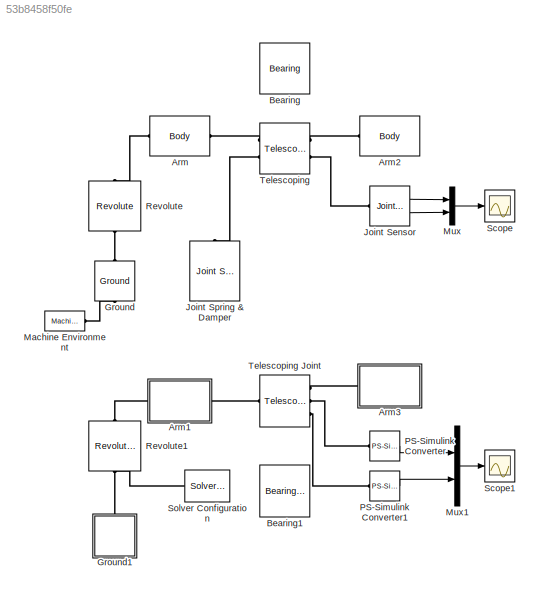
MODEL slx_53b8458f50fe
KIND model
CONFIG PreLoadFcn = Arm_length = 0.5;
BLOCK [Reference] Arm  REF=mblibv1/Bodies/Body
  AttachedToCS = CG
  BodyColor = [1 0 0]
  BodyColorSelMode = MACHINE_DEFAULT
  CG = Left$CG$[Arm_length/2 0 0]$CS1$CS1$m$[0 0 0]$Euler X-Y-Z$deg$CS1$false$none
  CGPos = [Arm_length/2 0 0]
  CGRot = [0 0 0]
  CS0Pos = []
  CS0Rot = []
  CS10Pos = []
  CS10Rot = []
  CS11Pos = []
  CS11Rot = []
  CS12Pos = []
  CS12Rot = []
  CS13Pos = []
  CS13Rot = []
  CS14Pos = []
  CS14Rot = []
  CS15Pos = []
  CS15Rot = []
  CS16Pos = []
  CS16Rot = []
  CS17Pos = []
  CS17Rot = []
  CS18Pos = []
  CS18Rot = []
  CS19Pos = []
  CS19Rot = []
  CS1Pos = [0 0 0]
  CS1Rot = [0 0 0]
  CS20Pos = []
  CS20Rot = []
  CS2Pos = [Arm_length 0 0]
  CS2Rot = [0 90 0]
  CS3Pos = []
  CS3Rot = []
  CS4Pos = []
  CS4Rot = []
  CS5Pos = []
  CS5Rot = []
  CS6Pos = []
  CS6Rot = []
  CS7Pos = []
  CS7Rot = []
  CS8Pos = []
  CS8Rot = []
  CS9Pos = []
  CS9Rot = []
  ClassName = Body
  Density = 1
  DensityUnits = kg/m^3
  DensityUse = false
  DialogClass = MechanicalBodyBlock
  GraphicsMode = MACHINE_DEFAULT
  Inertia = eye(3)
  InertiaUnits = kg*m^2
  LConnTagsString = CS1
  Mass = 1
  MassUnits = kg
  Ports = [0, 0, 0, 0, 0, 1, 1]
  RConnTagsString = CS2
  Shape = Cylinder
  ShapeDims = [1 1]
  ShapeUnits = m
  ShapeUse = false
  SourceBlock = mblibv1/Bodies/Body
  SourceType = Body
  UpdateFromCAD = off
  WorkingFrames = Left$CS1$[0 0 0]$Adjoining$Adjoining$m$[0 0 0]$Euler X-Y-Z$deg$Adjoining$true$none#Right$CS2$[Arm_length 0 0]$CS1$CS1$m$[0 90 0]$Euler X-Y-Z$deg$CS1$true$none
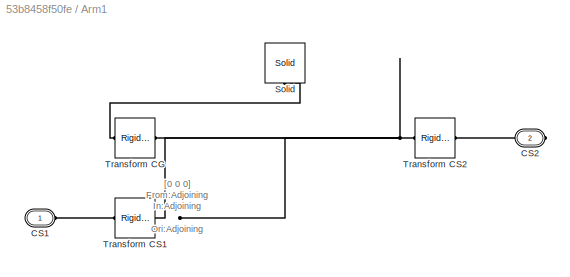
BLOCK [SubSystem] Arm1
  FunctionWithSeparateData = off
  MaskHideContents = off
  MinAlgLoopOccurrences = off
  Opaque = off
  Ports = [0, 0, 0, 0, 0, 1, 1]
  PropExecContextOutsideSubsystem = off
  RTWSystemCode = Auto
  RequestExecContextInheritance = off
BLOCK [PMIOPort] Arm1/CS1
  Port = 1
  Side = Left
BLOCK [PMIOPort] Arm1/CS2
  Port = 2
  Side = Right
BLOCK [Reference] Arm1/Solid  REF=sm_lib/Body Elements/Solid
  BlockFunction = simmechanics.library.body_elements.solid
  BrickDimensionUnits = m
  BrickDimensions = [1 0.1 0.1]*Arm_length
  CenterOfMass = [0 0 0]
  CenterOfMassUnits = m
  ClassName = Solid
  CylinderLength = 1
  CylinderLengthUnits = m
  CylinderRadius = 1
  CylinderRadiusUnits = m
  Density = 1000
  DensityBased = on
  DensityUnits = kg/(m^3)
  EllipsoidRadii = [1 1 1]
  EllipsoidRadiiUnits = m
  ExtGeomFileUnits = m
  ExtrusionCrossSection = [1 1; -1 1; -1 -1; 1 -1]
  ExtrusionCrossSectionUnits = m
  ExtrusionLength = 1
  ExtrusionLengthUnits = m
  GeometryShape = Brick
  GraphicAmbientColor = [0.15 0.15 0.15 1.0]
  GraphicDiffuseColor = [1 0 0]
  GraphicEmissiveColor = [0.0 0.0 0.0 1.0]
  GraphicOpacity = 1.0
  GraphicShininess = 75
  GraphicSpecularColor = [0.5 0.5 0.5 1.0]
  GraphicType = FromGeometry
  GraphicVisPropType = SimpleVisualProperties
  InertiaType = Custom
  MarkerShape = Sphere
  MarkerSize = 10
  MarkerSizeUnits = m
  Mass = 1
  MassUnits = kg
  MomentsOfInertia = [1  1  1]
  MomentsOfInertiaUnits = kg*m^2
  PolygonNumSides = 3
  PolygonOuterRadius = 1
  PolygonOuterRadiusUnits = m
  Ports = [0, 0, 0, 0, 0, 0, 1]
  ProductsOfInertia = [0  0  0]
  ProductsOfInertiaUnits = kg*m^2
  RectangleSize = [1 1]
  RectangleSizeUnits = m
  RevolutionAngle = 180
  RevolutionAngleUnits = deg
  RevolutionCrossSection = [1 1; 1 -1; 2 -1; 2 1]
  RevolutionCrossSectionUnits = m
  RevolutionExtent = Full
  SourceBlock = sm_lib/Body Elements/Solid
  SourceType = Solid
  SphereRadius = 1
  SphereRadiusUnits = m
BLOCK [Reference] Arm1/Transform CG  REF=sm_lib/Frames and
 Transforms/Rigid 
Transform
  BaseAlignAxisA = +Y
  BaseAlignAxisB = +Z
  BlockFunction = simmechanics.library.frames_transforms.rigid_transform
  ClassName = RigidTransform
  FollAlignAxisA = +X
  FollAlignAxisB = +Y
  Ports = [0, 0, 0, 0, 0, 1, 1]
  RotationAngle = 0.0
  RotationAngleUnits = deg
  RotationArbitraryAxis = [0 0 1]
  RotationMethod = None
  RotationStandardAxis = +Z
  SourceBlock = sm_lib/Frames and\n Transforms/Rigid \nTransform
  SourceType = Rigid Transform
  TranslationCartesianOffset = [Arm_length/2 0 0]
  TranslationLengthUnit = m
  TranslationMethod = Cartesian
  TranslationROffset = 0
  TranslationROffsetUnits = m
  TranslationStandardAxis = +Z
  TranslationStandardOffset = 0
  TranslationThetaOffset = 0
  TranslationThetaOffsetUnits = deg
  TranslationZOffset = 0
  TranslationZOffsetUnits = m
BLOCK [Reference] Arm1/Transform CS1  REF=sm_lib/Frames and
 Transforms/Rigid 
Transform
  BaseAlignAxisA = +Y
  BaseAlignAxisB = +Z
  BlockFunction = simmechanics.library.frames_transforms.rigid_transform
  ClassName = RigidTransform
  FollAlignAxisA = +X
  FollAlignAxisB = +Y
  Ports = [0, 0, 0, 0, 0, 1, 1]
  RotationAngle = 0.0
  RotationAngleUnits = deg
  RotationArbitraryAxis = [0 0 1]
  RotationMethod = None
  RotationStandardAxis = +Z
  SourceBlock = sm_lib/Frames and\n Transforms/Rigid \nTransform
  SourceType = Rigid Transform
  TranslationCartesianOffset = [0 0 0]
  TranslationLengthUnit = m
  TranslationMethod = Cartesian
  TranslationROffset = 0
  TranslationROffsetUnits = m
  TranslationStandardAxis = +Z
  TranslationStandardOffset = 0
  TranslationThetaOffset = 0
  TranslationThetaOffsetUnits = deg
  TranslationZOffset = 0
  TranslationZOffsetUnits = m
BLOCK [Reference] Arm1/Transform CS2  REF=sm_lib/Frames and
 Transforms/Rigid 
Transform
  BaseAlignAxisA = +Y
  BaseAlignAxisB = +Z
  BlockFunction = simmechanics.library.frames_transforms.rigid_transform
  ClassName = RigidTransform
  FollAlignAxisA = +X
  FollAlignAxisB = +Y
  Ports = [0, 0, 0, 0, 0, 1, 1]
  RotationAngle = 90
  RotationAngleUnits = deg
  RotationArbitraryAxis = [0 0 1]
  RotationMethod = StandardAxis
  RotationStandardAxis = +Y
  SourceBlock = sm_lib/Frames and\n Transforms/Rigid \nTransform
  SourceType = Rigid Transform
  TranslationCartesianOffset = [Arm_length 0 0]
  TranslationLengthUnit = m
  TranslationMethod = Cartesian
  TranslationROffset = 0
  TranslationROffsetUnits = m
  TranslationStandardAxis = +Z
  TranslationStandardOffset = 0
  TranslationThetaOffset = 0
  TranslationThetaOffsetUnits = deg
  TranslationZOffset = 0
  TranslationZOffsetUnits = m
BLOCK [Reference] Arm2  REF=mblibv1/Bodies/Body
  AttachedToCS = CG
  BodyColor = [1 0 0]
  BodyColorSelMode = MACHINE_DEFAULT
  CG = Right$CG$[0 0 -Arm_length/2]$CS1$CS1$m$[-90 0 0]$Euler X-Y-Z$deg$CS1$true$none
  CGPos = [0 0 -Arm_length/2]
  CGRot = [-90 0 0]
  CS0Pos = []
  CS0Rot = []
  CS10Pos = []
  CS10Rot = []
  CS11Pos = []
  CS11Rot = []
  CS12Pos = []
  CS12Rot = []
  CS13Pos = []
  CS13Rot = []
  CS14Pos = []
  CS14Rot = []
  CS15Pos = []
  CS15Rot = []
  CS16Pos = []
  CS16Rot = []
  CS17Pos = []
  CS17Rot = []
  CS18Pos = []
  CS18Rot = []
  CS19Pos = []
  CS19Rot = []
  CS1Pos = [0 0 0]
  CS1Rot = [0 0 0]
  CS20Pos = []
  CS20Rot = []
  CS2Pos = [0 0 -Arm_length]
  CS2Rot = [0 0 0]
  CS3Pos = []
  CS3Rot = []
  CS4Pos = []
  CS4Rot = []
  CS5Pos = []
  CS5Rot = []
  CS6Pos = []
  CS6Rot = []
  CS7Pos = []
  CS7Rot = []
  CS8Pos = []
  CS8Rot = []
  CS9Pos = []
  CS9Rot = []
  ClassName = Body
  Density = 1
  DensityUnits = kg/m^3
  DensityUse = false
  DialogClass = MechanicalBodyBlock
  GraphicsMode = MACHINE_DEFAULT
  Inertia = eye(3)
  InertiaUnits = kg*m^2
  LConnTagsString = CS1
  Mass = 1
  MassUnits = kg
  Ports = [0, 0, 0, 0, 0, 1, 1]
  RConnTagsString = CG
  Shape = Cylinder
  ShapeDims = [1 1]
  ShapeUnits = m
  ShapeUse = false
  SourceBlock = mblibv1/Bodies/Body
  SourceType = Body
  UpdateFromCAD = off
  WorkingFrames = Left$CS1$[0 0 0]$Adjoining$Adjoining$m$[0 0 0]$Euler X-Y-Z$deg$Adjoining$true$none#Right$CS2$[0 0 -Arm_length]$CS1$CS1$m$[0 0 0]$Euler X-Y-Z$deg$CS1$false$none
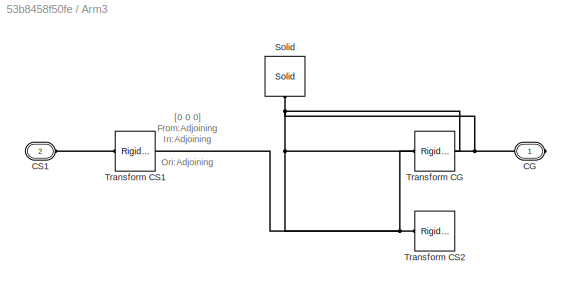
BLOCK [SubSystem] Arm3
  FunctionWithSeparateData = off
  MaskHideContents = off
  MinAlgLoopOccurrences = off
  Opaque = off
  Ports = [0, 0, 0, 0, 0, 1, 1]
  PropExecContextOutsideSubsystem = off
  RTWSystemCode = Auto
  RequestExecContextInheritance = off
BLOCK [PMIOPort] Arm3/CG
  Port = 1
  Side = Right
BLOCK [PMIOPort] Arm3/CS1
  Port = 2
  Side = Left
BLOCK [Reference] Arm3/Solid  REF=sm_lib/Body Elements/Solid
  BlockFunction = simmechanics.library.body_elements.solid
  BrickDimensionUnits = m
  BrickDimensions = [0.1 1 0.1]*Arm_length
  CenterOfMass = [0 0 0]
  CenterOfMassUnits = m
  ClassName = Solid
  CylinderLength = 1
  CylinderLengthUnits = m
  CylinderRadius = 1
  CylinderRadiusUnits = m
  Density = 1000
  DensityBased = on
  DensityUnits = kg/(m^3)
  EllipsoidRadii = [1 1 1]
  EllipsoidRadiiUnits = m
  ExtGeomFileUnits = m
  ExtrusionCrossSection = [1 1; -1 1; -1 -1; 1 -1]
  ExtrusionCrossSectionUnits = m
  ExtrusionLength = 1
  ExtrusionLengthUnits = m
  GeometryShape = Brick
  GraphicAmbientColor = [0.15 0.15 0.15 1.0]
  GraphicDiffuseColor = [1 0 0]
  GraphicEmissiveColor = [0.0 0.0 0.0 1.0]
  GraphicOpacity = 1.0
  GraphicShininess = 75
  GraphicSpecularColor = [0.5 0.5 0.5 1.0]
  GraphicType = FromGeometry
  GraphicVisPropType = SimpleVisualProperties
  InertiaType = Custom
  MarkerShape = Sphere
  MarkerSize = 10
  MarkerSizeUnits = m
  Mass = 1
  MassUnits = kg
  MomentsOfInertia = [1  1  1]
  MomentsOfInertiaUnits = kg*m^2
  PolygonNumSides = 3
  PolygonOuterRadius = 1
  PolygonOuterRadiusUnits = m
  Ports = [0, 0, 0, 0, 0, 0, 1]
  ProductsOfInertia = [0  0  0]
  ProductsOfInertiaUnits = kg*m^2
  RectangleSize = [1 1]
  RectangleSizeUnits = m
  RevolutionAngle = 180
  RevolutionAngleUnits = deg
  RevolutionCrossSection = [1 1; 1 -1; 2 -1; 2 1]
  RevolutionCrossSectionUnits = m
  RevolutionExtent = Full
  SourceBlock = sm_lib/Body Elements/Solid
  SourceType = Solid
  SphereRadius = 1
  SphereRadiusUnits = m
BLOCK [Reference] Arm3/Transform CG  REF=sm_lib/Frames and
 Transforms/Rigid 
Transform
  BaseAlignAxisA = +Y
  BaseAlignAxisB = +Z
  BlockFunction = simmechanics.library.frames_transforms.rigid_transform
  ClassName = RigidTransform
  FollAlignAxisA = +X
  FollAlignAxisB = +Y
  Ports = [0, 0, 0, 0, 0, 1, 1]
  RotationAngle = -90
  RotationAngleUnits = deg
  RotationArbitraryAxis = [0 0 1]
  RotationMethod = StandardAxis
  RotationStandardAxis = +X
  SourceBlock = sm_lib/Frames and\n Transforms/Rigid \nTransform
  SourceType = Rigid Transform
  TranslationCartesianOffset = [0 0 -Arm_length/2]
  TranslationLengthUnit = m
  TranslationMethod = Cartesian
  TranslationROffset = 0
  TranslationROffsetUnits = m
  TranslationStandardAxis = +Z
  TranslationStandardOffset = 0
  TranslationThetaOffset = 0
  TranslationThetaOffsetUnits = deg
  TranslationZOffset = 0
  TranslationZOffsetUnits = m
BLOCK [Reference] Arm3/Transform CS1  REF=sm_lib/Frames and
 Transforms/Rigid 
Transform
  BaseAlignAxisA = +Y
  BaseAlignAxisB = +Z
  BlockFunction = simmechanics.library.frames_transforms.rigid_transform
  ClassName = RigidTransform
  FollAlignAxisA = +X
  FollAlignAxisB = +Y
  Ports = [0, 0, 0, 0, 0, 1, 1]
  RotationAngle = 0.0
  RotationAngleUnits = deg
  RotationArbitraryAxis = [0 0 1]
  RotationMethod = None
  RotationStandardAxis = +Z
  SourceBlock = sm_lib/Frames and\n Transforms/Rigid \nTransform
  SourceType = Rigid Transform
  TranslationCartesianOffset = [0 0 0]
  TranslationLengthUnit = m
  TranslationMethod = Cartesian
  TranslationROffset = 0
  TranslationROffsetUnits = m
  TranslationStandardAxis = +Z
  TranslationStandardOffset = 0
  TranslationThetaOffset = 0
  TranslationThetaOffsetUnits = deg
  TranslationZOffset = 0
  TranslationZOffsetUnits = m
BLOCK [Reference] Arm3/Transform CS2  REF=sm_lib/Frames and
 Transforms/Rigid 
Transform
  BaseAlignAxisA = +Y
  BaseAlignAxisB = +Z
  BlockFunction = simmechanics.library.frames_transforms.rigid_transform
  ClassName = RigidTransform
  FollAlignAxisA = +X
  FollAlignAxisB = +Y
  Ports = [0, 0, 0, 0, 0, 1, 1]
  RotationAngle = 0.0
  RotationAngleUnits = deg
  RotationArbitraryAxis = [0 0 1]
  RotationMethod = None
  RotationStandardAxis = +Z
  SourceBlock = sm_lib/Frames and\n Transforms/Rigid \nTransform
  SourceType = Rigid Transform
  TranslationCartesianOffset = [0 0 -Arm_length]
  TranslationLengthUnit = m
  TranslationMethod = Cartesian
  TranslationROffset = 0
  TranslationROffsetUnits = m
  TranslationStandardAxis = +Z
  TranslationStandardOffset = 0
  TranslationThetaOffset = 0
  TranslationThetaOffsetUnits = deg
  TranslationZOffset = 0
  TranslationZOffsetUnits = m
BLOCK [Reference] Bearing  REF=mblibv1/Joints/Bearing
  ClassName = BearingJoint
  Commented = on
  CutJoint = off
  DialogClass = JointBlock
  LConnTagsString = __newl0|SA1
  MarkAsCut = off
  NumSAPorts = 2
  P1Axis = [0 0 1]
  Ports = [0, 0, 0, 0, 0, 2, 2]
  PrimitiveProps = R1$Follower$[1 0 0]$revolute#R2$Follower$[0 1 0]$revolute#R3$Follower$[0 0 1]$revolute#P1$Base$[0 0 1]$prismatic
  Primitives = prismatic_prismatic
  R1Axis = [1 0 0]
  R2Axis = [0 1 0]
  R3Axis = [0 0 1]
  RConnTagsString = __newr0|SA1
  SourceBlock = mblibv1/Joints/Bearing
  SourceType = Bearing
  UpdateFromCAD = off
BLOCK [Reference] Bearing1  REF=sm_lib/Joints/Bearing Joint
  BlockFunction = simmechanics.library.joints.bearing_joint
  ClassName = BearingJoint
  Commented = on
  ConstraintWrenchDir = FollowerOnBase
  ConstraintWrenchFrame = BaseFrame
  Ports = [0, 0, 0, 0, 0, 1, 3]
  PzActuationMode = NoActuation
  PzDampingCoefficient = 5
  PzDampingCoefficientUnits = N/(m/s)
  PzEquilibriumPosition = 0
  PzEquilibriumPositionUnits = m
  PzPositionTargetPriority = High
  PzPositionTargetSpecify = off
  PzPositionTargetValue = 0
  PzPositionTargetValueUnits = m
  PzSenseAcceleration = off
  PzSensePosition = on
  PzSenseTorqueForce = off
  PzSenseVelocity = on
  PzSpringStiffness = 20
  PzSpringStiffnessUnits = N/m
  PzVelocityTargetPriority = High
  PzVelocityTargetSpecify = off
  PzVelocityTargetValue = 0
  PzVelocityTargetValueUnits = m/s
  RxActuationMode = NoActuation
  RxDampingCoefficient = 0
  RxDampingCoefficientUnits = N*m/(deg/s)
  RxEquilibriumPosition = 0
  RxEquilibriumPositionUnits = deg
  RxPositionTargetPriority = High
  RxPositionTargetSpecify = off
  RxPositionTargetValue = 0
  RxPositionTargetValueUnits = deg
  RxSenseAcceleration = off
  RxSensePosition = off
  RxSenseTorqueForce = off
  RxSenseVelocity = off
  RxSpringStiffness = 0
  RxSpringStiffnessUnits = N*m/deg
  RxVelocityTargetPriority = High
  RxVelocityTargetSpecify = off
  RxVelocityTargetValue = 0
  RxVelocityTargetValueUnits = deg/s
  RyActuationMode = NoActuation
  RyDampingCoefficient = 0
  RyDampingCoefficientUnits = N*m/(deg/s)
  RyEquilibriumPosition = 0
  RyEquilibriumPositionUnits = deg
  RyPositionTargetPriority = High
  RyPositionTargetSpecify = off
  RyPositionTargetValue = 0
  RyPositionTargetValueUnits = deg
  RySenseAcceleration = off
  RySensePosition = off
  RySenseTorqueForce = off
  RySenseVelocity = off
  RySpringStiffness = 0
  RySpringStiffnessUnits = N*m/deg
  RyVelocityTargetPriority = High
  RyVelocityTargetSpecify = off
  RyVelocityTargetValue = 0
  RyVelocityTargetValueUnits = deg/s
  RzActuationMode = NoActuation
  RzDampingCoefficient = 5
  RzDampingCoefficientUnits = N*m/(deg/s)
  RzEquilibriumPosition = 0
  RzEquilibriumPositionUnits = deg
  RzPositionTargetPriority = High
  RzPositionTargetSpecify = off
  RzPositionTargetValue = 0
  RzPositionTargetValueUnits = deg
  RzSenseAcceleration = off
  RzSensePosition = off
  RzSenseTorqueForce = off
  RzSenseVelocity = off
  RzSpringStiffness = 20
  RzSpringStiffnessUnits = N*m/deg
  RzVelocityTargetPriority = High
  RzVelocityTargetSpecify = off
  RzVelocityTargetValue = 0
  RzVelocityTargetValueUnits = deg/s
  SenseConstraintForceX = off
  SenseConstraintForceY = off
  SenseConstraintForceZ = off
  SenseConstraintTorqueX = off
  SenseConstraintTorqueY = off
  SenseConstraintTorqueZ = off
  SourceBlock = sm_lib/Joints/Bearing Joint
  SourceType = Bearing Joint
BLOCK [Reference] Ground  REF=mblibv1/Bodies/Ground
  ClassName = Ground
  CoordPosition = [0 0 0]
  CoordPositionUnits = m
  DialogClass = GroundBlock
  LeftPortType = env
  MachineId = [0 0]
  PhysicalDomain = Mechanical
  Ports = [0, 0, 0, 0, 0, 1, 1]
  RightPortType = workingframe
  ShowEnvPort = on
  SourceBlock = mblibv1/Bodies/Ground
  SourceType = Ground
  StateVectorMgrId = -1
  UpdateFromCAD = off
  UserDataPersistent = on
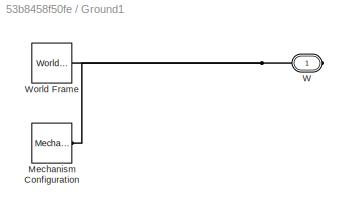
BLOCK [SubSystem] Ground1
  FunctionWithSeparateData = off
  MaskHideContents = off
  MinAlgLoopOccurrences = off
  Opaque = off
  Ports = [0, 0, 0, 0, 0, 0, 1]
  PropExecContextOutsideSubsystem = off
  RTWSystemCode = Auto
  RequestExecContextInheritance = off
BLOCK [Reference] Ground1/Mechanism Configuration  REF=sm_lib/Utilities/Mechanism
Configuration
  BlockFunction = simmechanics.library.utilities.mechanism_configuration
  ClassName = MechanismConfiguration
  GravityUnits = m/s^2
  GravityVector = [0 -9.81 0]
  LinearizationDelta = 0.001
  LogSimulationData = off
  Ports = [0, 0, 0, 0, 0, 0, 1]
  SourceBlock = sm_lib/Utilities/Mechanism\nConfiguration
  SourceType = Mechanism\nConfiguration
  UniformGravity = Constant
BLOCK [PMIOPort] Ground1/W
  Port = 1
  Side = Right
BLOCK [Reference] Ground1/World Frame  REF=sm_lib/Frames and
Transforms/World Frame
  BlockFunction = simmechanics.library.frames_transforms.world_frame
  ClassName = WorldFrame
  LogSimulationData = off
  Ports = [0, 0, 0, 0, 0, 0, 1]
  SourceBlock = sm_lib/Frames and\nTransforms/World Frame
  SourceType = World Frame
BLOCK [Reference] Joint Sensor  REF=mblibv1/Sensors & 
Actuators/Joint Sensor
  Acceleration = off
  AccelerationUnits = m/s^2
  ActiveIO = on
  Angle = on
  AngleUnits = deg
  ArcAcceleration = off
  ArcAccelerationUnits = deg/s^2
  ArcVelocity = off
  ArcVelocityUnits = deg/s
  ClassName = JointSensor
  CoordPosition = on
  CoordPositionUnits = m
  DialogClass = MechanicalSensorBlock
  Force = off
  ForceUnits = N
  Muxed = off
  OutputVector = [1]
  PhysicalDomain = Mechanical
  PortType = blob
  Ports = [0, 2, 0, 0, 0, 1]
  Pose = off
  Primitive = P1
  Quaternion = on
  QuaternionDDT = off
  QuaternionDT = off
  QuaternionUnits = off
  ReactionForce = off
  ReactionForceUnits = N
  ReactionMoment = off
  ReactionMomentUnits = N*m
  ReactionReferenceFrame = Absolute (World)
  ReactionSensedSide = Base
  ReferenceFrame = Absolute (World)
  SourceBlock = mblibv1/Sensors & \nActuators/Joint Sensor
  SourceType = Joint Sensor
  Torque = off
  TorqueUnits = N*m
  UpdateFromCAD = off
  Velocity = on
  VelocityUnits = m/s
  Width = 2
BLOCK [Reference] Joint Spring & Damper  REF=mblibv1/Force 
Elements/Joint Spring & Damper
  ClassName = JointSpringDamper
  DialogClass = JointSpringDamper
  JFEParameters = P1$true$20$5$0$m$m/s$N$deg$deg/s$N*m#P2$false$0$0$0$m$m/s$N$deg$deg/s$N*m#P3$false$0$0$0$m$m/s$N$deg$deg/s$N*m#R1$false$0$0$0$m$m/s$N$deg$deg/s$N*m#R2$false$0$0$0$m$m/s$N$deg$deg/s$N*m#R3$false$20$5$0$m$m/s$N$deg$deg/s$N*m#S$false$0$0$0$m$m/s$N$deg$deg/s$N*m
  Ports = [0, 0, 0, 0, 0, 1]
  SourceBlock = mblibv1/Force \nElements/Joint Spring & Damper
  SourceType = Joint Spring & Damper
  UpdateFromCAD = off
BLOCK [Reference] Machine Environment  REF=mblibv1/Bodies/Machine
Environment
  AnalysisType = Forward dynamics
  AngularAssemblyTolerance = 1e-3
  AngularAssemblyToleranceUnits = rad
  BodyColorSelMode = Use model default
  BodyVisualizationType = Use model default body geometries
  ClassName = Environment
  ConstraintAbsTolerance = 1e-4
  ConstraintRelTolerance = 1e-4
  ConstraintSolverType = Stabilizing
  DefaultBodyColor = [1 0 0]
  DialogTemplateClass = MECH.MachineEnvironment
  Dimensionality = Auto-detect
  Gravity = [0 -9.81 0]
  GravityAsSignal = off
  GravityUnits = m/s^2
  LinearAssemblyTolerance = 1e-3
  LinearAssemblyToleranceUnits = m
  PerturbationSize = 1e-5
  PhysicalDomain = Mechanical
  PortType = env
  Ports = [0, 0, 0, 0, 0, 0, 1]
  RedundancyAnalysisTolerance = 1e-14
  RedundancyAnalysisToleranceType = Automatically select tolerance
  SourceBlock = mblibv1/Bodies/Machine\nEnvironment
  SourceType = Machine Environment
  StatePerturbationType = Fixed
  SyncWhenCopied = off
  Tag = Factory ground
  UseRobustSingularityHandling = off
  VisualizeMachine = on
BLOCK [Mux] Mux
  DisplayOption = bar
  Inputs = 2
  Ports = [2, 1]
BLOCK [Mux] Mux1
  DisplayOption = bar
  Inputs = 2
  Ports = [2, 1]
BLOCK [Reference] PS-Simulink Converter  REF=nesl_utility/PS-Simulink
Converter
  AffineConversion = off
  Frequencies = []
  LeftPortType = input
  PhysicalDomain = network_engine_domain
  Ports = [0, 1, 0, 0, 0, 1]
  PseudoPeriodic = off
  RightPortType = output
  SourceBlock = nesl_utility/PS-Simulink\nConverter
  SourceType = PS-Simulink\nConverter
  SubClassName = ps_output
  Unit = 1
BLOCK [Reference] PS-Simulink Converter1  REF=nesl_utility/PS-Simulink
Converter
  AffineConversion = off
  Frequencies = []
  LeftPortType = input
  PhysicalDomain = network_engine_domain
  Ports = [0, 1, 0, 0, 0, 1]
  PseudoPeriodic = off
  RightPortType = output
  SourceBlock = nesl_utility/PS-Simulink\nConverter
  SourceType = PS-Simulink\nConverter
  SubClassName = ps_output
  Unit = 1
BLOCK [Reference] Revolute  REF=mblibv1/Joints/Revolute
  ClassName = Joint
  CutJoint = off
  DialogClass = JointBlock
  LConnTagsString = __newl0
  MarkAsCut = off
  NumSAPorts = 0
  Ports = [0, 0, 0, 0, 0, 1, 1]
  PrimitiveProps = R1$Base$[0 0 1]$revolute
  Primitives = prismatic
  R1Axis = [0 0 1]
  RConnTagsString = __newr0
  SourceBlock = mblibv1/Joints/Revolute
  SourceType = Revolute
  UpdateFromCAD = off
BLOCK [Reference] Revolute1  REF=sm_lib/Joints/Revolute Joint
  ActuationMode = NoActuation
  BlockFunction = simmechanics.library.joints.revolute_joint
  ClassName = RevoluteJoint
  ConstraintWrenchDir = FollowerOnBase
  ConstraintWrenchFrame = BaseFrame
  DampingCoefficient = 0
  DampingCoefficientUnits = N*m/(deg/s)
  EquilibriumPosition = 0
  EquilibriumPositionUnits = deg
  Ports = [0, 0, 0, 0, 0, 1, 1]
  PositionTargetPriority = High
  PositionTargetSpecify = off
  PositionTargetValue = 0
  PositionTargetValueUnits = deg
  SenseAcceleration = off
  SenseConstraintForceX = off
  SenseConstraintForceY = off
  SenseConstraintForceZ = off
  SenseConstraintTorqueX = off
  SenseConstraintTorqueY = off
  SenseConstraintTorqueZ = off
  SensePosition = off
  SenseTorqueForce = off
  SenseVelocity = off
  SourceBlock = sm_lib/Joints/Revolute Joint
  SourceType = Revolute Joint
  SpringStiffness = 0
  SpringStiffnessUnits = N*m/deg
  VelocityTargetPriority = High
  VelocityTargetSpecify = off
  VelocityTargetValue = 0
  VelocityTargetValueUnits = deg/s
BLOCK [Scope] Scope
  Floating = off
  NumInputPorts = 1
  Ports = [1]
  ShowLegends = off
BLOCK [Scope] Scope1
  Floating = off
  NumInputPorts = 1
  Ports = [1]
  SaveName = ScopeData1
  ShowLegends = off
BLOCK [Reference] Solver Configuration  REF=nesl_utility/Solver
Configuration
  Accelerate = off
  DelaysMemoryBudget = 1024
  DoDC = off
  DoFixedCost = off
  EnableSwitchedLinearOptims = on
  FrequencyDomain = off
  Harmonics = []
  LeftPortType = input
  LinearAlgebra = Sparse
  LocalSolverChoice = NE_BACKWARD_EULER_ADVANCER
  LocalSolverSampleTime = 0.001
  MaxModeIter = 2
  MaxNonlinIter = 3
  PhysicalDomain = network_engine_domain
  Ports = [0, 0, 0, 0, 0, 0, 1]
  Profile = off
  ResidualTolerance = 1e-09
  RightPortType = generic
  SimulateNoise = off
  SourceBlock = nesl_utility/Solver\nConfiguration
  SourceType = Solver\nConfiguration
  SubClassName = solver
  Tones = []
  UseCCode = off
  UseLocalSampling = off
  UseLocalSolver = off
  UseNewInitialization = off
BLOCK [Reference] Telescoping  REF=mblibv1/Joints/Telescoping
  ClassName = Joint
  CutJoint = off
  DialogClass = JointBlock
  LConnTagsString = __newl0|SA1
  MarkAsCut = off
  NumSAPorts = 2
  P1Axis = [0 0 1]
  Ports = [0, 0, 0, 0, 0, 2, 2]
  PrimitiveProps = S$World$[0 0 0]$spherical#P1$Base$[0 0 1]$prismatic
  Primitives = spherical
  RConnTagsString = __newr0|SA1
  SAxis = [0 0 0]
  SourceBlock = mblibv1/Joints/Telescoping
  SourceType = Telescoping
  UpdateFromCAD = off
BLOCK [Reference] Telescoping Joint  REF=sm_lib/Joints/Telescoping 
Joint
  BlockFunction = simmechanics.library.joints.telescoping_joint
  ClassName = TelescopingJoint
  ConstraintWrenchDir = FollowerOnBase
  ConstraintWrenchFrame = BaseFrame
  Ports = [0, 0, 0, 0, 0, 1, 3]
  PzActuationMode = NoActuation
  PzDampingCoefficient = 5
  PzDampingCoefficientUnits = N/(m/s)
  PzEquilibriumPosition = 0
  PzEquilibriumPositionUnits = m
  PzPositionTargetPriority = High
  PzPositionTargetSpecify = off
  PzPositionTargetValue = 0
  PzPositionTargetValueUnits = m
  PzSenseAcceleration = off
  PzSensePosition = on
  PzSenseTorqueForce = off
  PzSenseVelocity = on
  PzSpringStiffness = 20
  PzSpringStiffnessUnits = N/m
  PzVelocityTargetPriority = High
  PzVelocityTargetSpecify = off
  PzVelocityTargetValue = 0
  PzVelocityTargetValueUnits = m/s
  SenseConstraintForceX = off
  SenseConstraintForceY = off
  SenseConstraintForceZ = off
  SenseConstraintTorqueX = off
  SenseConstraintTorqueY = off
  SenseConstraintTorqueZ = off
  SourceBlock = sm_lib/Joints/Telescoping \nJoint
  SourceType = Telescoping Joint
  SphActuateTorque = off
  SphActuateTorqueX = off
  SphActuateTorqueY = off
  SphActuateTorqueZ = off
  SphActuationFrame = BaseFrame
  SphActuationMode = NoActuation
  SphDampingCoefficient = 0
  SphDampingCoefficientUnits = N*m/(deg/s)
  SphDefPosBaseAlignAxisA = +Y
  SphDefPosBaseAlignAxisB = +Z
  SphDefPosFollAlignAxisA = +X
  SphDefPosFollAlignAxisB = +Y
  SphDefPosRotationAngle = 0.0
  SphDefPosRotationAngleUnits = deg
  SphDefPosRotationArbitraryAxis = [0 0 1]
  SphDefPosRotationMethod = None
  SphDefPosRotationStandardAxis = +Z
  SphEqPosBaseAlignAxisA = +Y
  SphEqPosBaseAlignAxisB = +Z
  SphEqPosFollAlignAxisA = +X
  SphEqPosFollAlignAxisB = +Y
  SphEqPosRotationAngle = 0.0
  SphEqPosRotationAngleUnits = deg
  SphEqPosRotationArbitraryAxis = [0 0 1]
  SphEqPosRotationMethod = None
  SphEqPosRotationStandardAxis = +Z
  SphPositionTargetBaseAlignAxisA = +Y
  SphPositionTargetBaseAlignAxisB = +Z
  SphPositionTargetFollAlignAxisA = +X
  SphPositionTargetFollAlignAxisB = +Y
  SphPositionTargetPriority = High
  SphPositionTargetRotationAngle = 0.0
  SphPositionTargetRotationAngleUnits = deg
  SphPositionTargetRotationArbitraryAxis = [0 0 1]
  SphPositionTargetRotationMethod = None
  SphPositionTargetRotationStandardAxis = +Z
  SphPositionTargetSpecify = off
  SphSenseAcceleration = off
  SphSenseAccelerationX = off
  SphSenseAccelerationY = off
  SphSenseAccelerationZ = off
  SphSensePosition = off
  SphSenseTorqueForce = off
  SphSenseTorqueX = off
  SphSenseTorqueY = off
  SphSenseTorqueZ = off
  SphSenseVelocity = off
  SphSenseVelocityX = off
  SphSenseVelocityY = off
  SphSenseVelocityZ = off
  SphSensingFrame = BaseFrame
  SphSpringStiffness = 0
  SphSpringStiffnessUnits = N*m/deg
  SphVelocityTargetInFollowerFrame = on
  SphVelocityTargetPriority = High
  SphVelocityTargetSpecify = off
  SphVelocityTargetValue = [0 0 0]
  SphVelocityTargetValueUnits = deg/s
ANNOTATION Arm1: [0 0 0] From:Adjoining In:Adjoining Ori:Adjoining
ANNOTATION Arm3: [0 0 0] From:Adjoining In:Adjoining Ori:Adjoining
LINE Joint Sensor:1 -> Mux:1
LINE Joint Sensor:2 -> Mux:2
LINE Mux1:1 -> Scope1:1
LINE Mux:1 -> Scope:1
LINE PS-Simulink Converter1:1 -> Mux1:2
LINE PS-Simulink Converter:1 -> Mux1:1
PLINE Arm1/CS1:RConn1 -- Arm1/Transform CS1:LConn1
PLINE Arm1/CS2:RConn1 -- Arm1/Transform CS2:RConn1
PLINE Arm1/Solid:RConn1 -- Arm1/Transform CG:RConn1
PNET net1: Arm1/Transform CG:LConn1 -- Arm1/Transform CS1:RConn1 -- Arm1/Transform CS2:LConn1
PLINE Arm1:LConn1 -- Revolute1:RConn1
PLINE Arm1:RConn1 -- Telescoping Joint:LConn1
PLINE Arm2:LConn1 -- Telescoping:RConn1
PNET net2: Arm3/CG:RConn1 -- Arm3/Solid:RConn1 -- Arm3/Transform CG:RConn1
PLINE Arm3/CS1:RConn1 -- Arm3/Transform CS1:LConn1
PNET net3: Arm3/Transform CG:LConn1 -- Arm3/Transform CS1:RConn1 -- Arm3/Transform CS2:LConn1
PLINE Arm3:LConn1 -- Telescoping Joint:RConn1
PLINE Arm:LConn1 -- Revolute:RConn1
PLINE Arm:RConn1 -- Telescoping:LConn1
PNET net4: Ground1/Mechanism Configuration:RConn1 -- Ground1/W:RConn1 -- Ground1/World Frame:RConn1
PNET net5: Ground1:RConn1 -- Revolute1:LConn1 -- Solver Configuration:RConn1
PLINE Ground:LConn1 -- Machine Environment:RConn1
PLINE Ground:RConn1 -- Revolute:LConn1
PLINE Joint Sensor:LConn1 -- Telescoping:RConn2
PLINE Joint Spring & Damper:LConn1 -- Telescoping:LConn2
PLINE PS-Simulink Converter1:LConn1 -- Telescoping Joint:RConn3
PLINE PS-Simulink Converter:LConn1 -- Telescoping Joint:RConn2
note: PNET lines group multi-terminal physical nets as a canonical sorted terminal list (undirected conserving connections); 2-terminal nets keep the pairwise PLINE form
